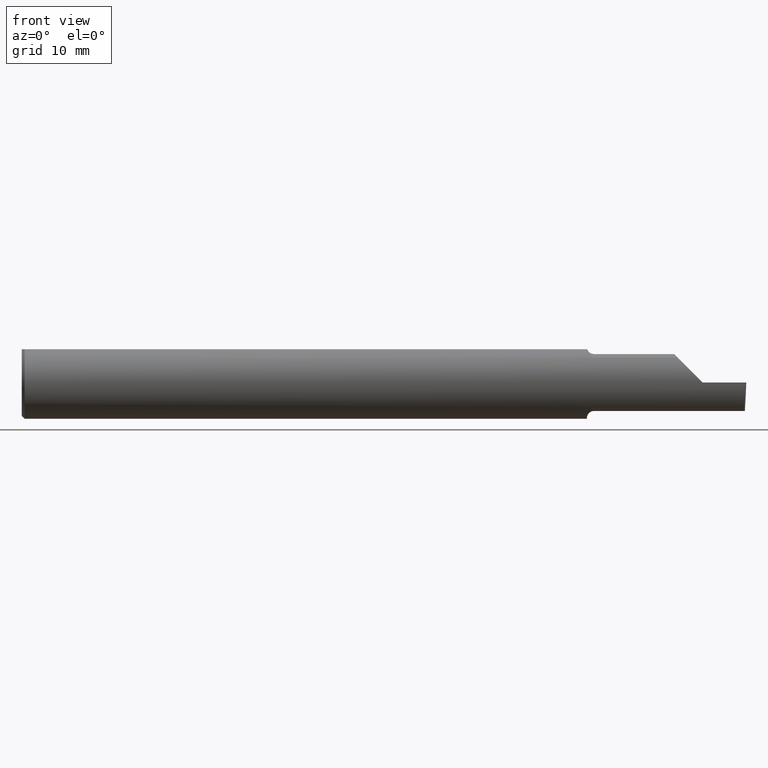
[diagram: clean part render]
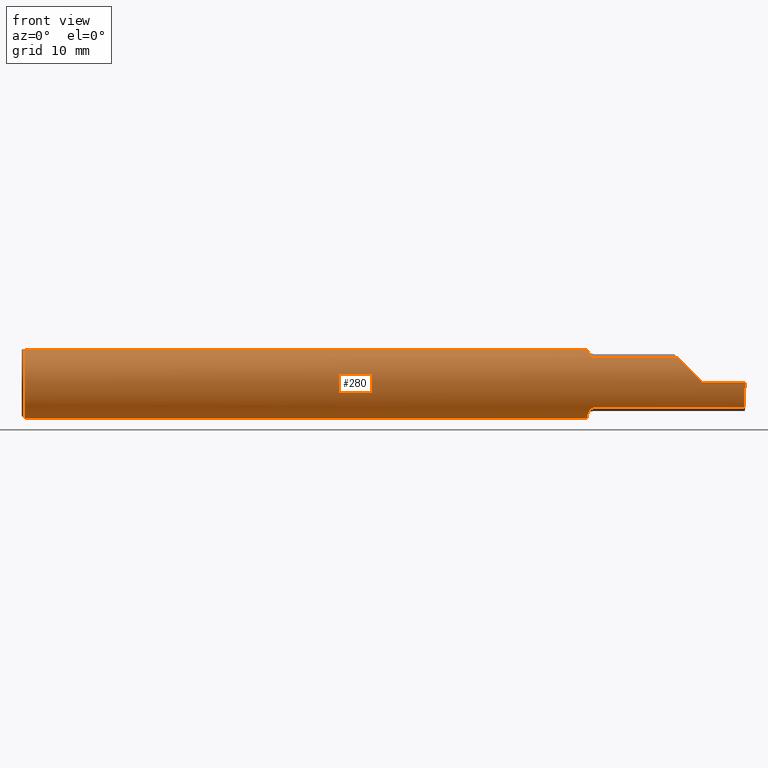
[diagram: same view with one face highlighted and labeled with its STEP entity id]
A machine part, front view. The second image highlights one B-rep face of the part: STEP entity #280.
In plain terms, the highlighted cylindrical surface (edge-blend (fillet) strip) has radius 3.175 mm, axis along (-1, -0, -0).
Its self-contained STEP definition (entity closure, byte-faithful):
#17 = ORIENTED_EDGE ( 'NONE', *, *, #48, .T. ) ;
#23 = B_SPLINE_CURVE_WITH_KNOTS ( 'NONE', 3,
 ( #637, #410, #148, #212, #354, #93, #470, #153, #685, #632, #359, #579 ),
 .UNSPECIFIED., .F., .F.,
 ( 4, 2, 2, 2, 2, 4 ),
 ( 1.964009442425878487E-07, 0.0001304774066965833025, 0.0002607584124489240127, 0.0005213204239535911217, 0.001042444446962923713, 0.002084692492981589981 ),
 .UNSPECIFIED. ) ;
#30 = AXIS2_PLACEMENT_3D ( 'NONE', #382, #58, #372 ) ;
#48 = EDGE_CURVE ( 'NONE', #337, #677, #59, .T. ) ;
#58 = DIRECTION ( 'NONE',  ( 1.000000000000000000, 3.255450358112149836E-17, 0.000000000000000000 ) ) ;
#59 =( BOUNDED_CURVE ( )  B_SPLINE_CURVE ( 3, ( #682, #295, #479, #312 ),
 .UNSPECIFIED., .F., .T. ) 
 B_SPLINE_CURVE_WITH_KNOTS ( ( 4, 4 ),
 ( 4.712388980384689674, 5.474523801125206646 ),
 .UNSPECIFIED. ) 
 CURVE ( )  GEOMETRIC_REPRESENTATION_ITEM ( )  RATIONAL_B_SPLINE_CURVE ( ( 1.000000000000000000, 0.9521787881681383903, 0.9521787881681383903, 1.000000000000000000 ) ) 
 REPRESENTATION_ITEM ( '' )  );
#61 = EDGE_CURVE ( 'NONE', #336, #383, #376, .T. ) ;
#63 = CIRCLE ( 'NONE', #365, 0.1250000000000000000 ) ;
#65 = AXIS2_PLACEMENT_3D ( 'NONE', #672, #498, #72 ) ;
#72 = DIRECTION ( 'NONE',  ( 0.000000000000000000, 0.000000000000000000, 1.000000000000000000 ) ) ;
#78 = EDGE_CURVE ( 'NONE', #415, #416, #23, .T. ) ;
#89 = CARTESIAN_POINT ( 'NONE',  ( 1.974999999999999867, -0.09042045454545430405, 0.08630840862739520836 ) ) ;
#90 = DIRECTION ( 'NONE',  ( 1.000000000000000000, 0.000000000000000000, 0.000000000000000000 ) ) ;
#92 = LINE ( 'NONE', #360, #305 ) ;
#93 = CARTESIAN_POINT ( 'NONE',  ( 1.964104893754834658, -0.08507551663519485885, -0.09161800969921145288 ) ) ;
#109 = CARTESIAN_POINT ( 'NONE',  ( 1.951278290187155484, -0.04898979485567042658, 0.1149999999999999217 ) ) ;
#130 =( BOUNDED_CURVE ( )  B_SPLINE_CURVE ( 3, ( #290, #201, #149, #414 ),
 .UNSPECIFIED., .F., .T. ) 
 B_SPLINE_CURVE_WITH_KNOTS ( ( 4, 4 ),
 ( 0.3451966888489937380, 1.107331509589511098 ),
 .UNSPECIFIED. ) 
 CURVE ( )  GEOMETRIC_REPRESENTATION_ITEM ( )  RATIONAL_B_SPLINE_CURVE ( ( 1.000000000000000000, 0.9521787881681382792, 0.9521787881681382792, 1.000000000000000000 ) ) 
 REPRESENTATION_ITEM ( '' )  );
#140 = CARTESIAN_POINT ( 'NONE',  ( 0.01000000000000042348, 0.000000000000000000, -0.1250000000000000000 ) ) ;
#143 = CARTESIAN_POINT ( 'NONE',  ( 2.224737910000000429, -0.09042045454545435956, 0.08630840862739518060 ) ) ;
#147 = CARTESIAN_POINT ( 'NONE',  ( 1.960996102358257609, -0.08116363444210958344, 0.09515685373890778176 ) ) ;
#148 = CARTESIAN_POINT ( 'NONE',  ( 1.971593478233292007, -0.08999923832592927886, -0.08675238105120941512 ) ) ;
#149 = CARTESIAN_POINT ( 'NONE',  ( 2.494776490973177552, -0.1250000000000000278, -0.03254916765648421806 ) ) ;
#152 = CARTESIAN_POINT ( 'NONE',  ( 1.949999999999999956, -0.02763636363636367069, -0.1219066503721543265 ) ) ;
#153 = CARTESIAN_POINT ( 'NONE',  ( 1.957957287629478849, -0.07583111505166782729, -0.09955951024620247891 ) ) ;
#163 = EDGE_CURVE ( 'NONE', #416, #697, #281, .T. ) ;
#194 = EDGE_CURVE ( 'NONE', #697, #383, #656, .T. ) ;
#196 = DIRECTION ( 'NONE',  ( 1.000000000000000000, 0.000000000000000000, 0.000000000000000000 ) ) ;
#198 = ORIENTED_EDGE ( 'NONE', *, *, #377, .F. ) ;
#201 = CARTESIAN_POINT ( 'NONE',  ( 2.493932522392287687, -0.1128945894460738480, -0.06276352435079118885 ) ) ;
#202 = CARTESIAN_POINT ( 'NONE',  ( 1.970169762358927823, -0.08954173371313516039, 0.08723520050113862945 ) ) ;
#206 = DIRECTION ( 'NONE',  ( 0.000000000000000000, 0.000000000000000000, -1.000000000000000000 ) ) ;
#212 = CARTESIAN_POINT ( 'NONE',  ( 1.968701570004388168, -0.08871861273376825674, -0.08806160498138397574 ) ) ;
#213 = VECTOR ( 'NONE', #400, 39.37007874015748143 ) ;
#219 = ORIENTED_EDGE ( 'NONE', *, *, #397, .F. ) ;
#222 = DIRECTION ( 'NONE',  ( -1.000000000000000000, -0.000000000000000000, -0.000000000000000000 ) ) ;
#234 = ORIENTED_EDGE ( 'NONE', *, *, #466, .T. ) ;
#242 = CARTESIAN_POINT ( 'NONE',  ( 0.01000000000000042348, 0.000000000000000000, 0.000000000000000000 ) ) ;
#247 = DIRECTION ( 'NONE',  ( 0.000000000000000000, 0.000000000000000000, -1.000000000000000000 ) ) ;
#250 = ORIENTED_EDGE ( 'NONE', *, *, #389, .F. ) ;
#251 = CARTESIAN_POINT ( 'NONE',  ( 0.01000000000000042348, 0.04898979485566374442, 0.1149999999999999217 ) ) ;
#267 = LINE ( 'NONE', #412, #626 ) ;
#277 = B_SPLINE_CURVE_WITH_KNOTS ( 'NONE', 3,
 ( #623, #405, #465, #628, #147, #297, #636, #202, #469, #89 ),
 .UNSPECIFIED., .F., .F.,
 ( 4, 2, 2, 2, 4 ),
 ( 5.067393987348957741E-07, 0.0007430328995925439273, 0.001114295979689448228, 0.001299927519737895283, 0.001485559059786342338 ),
 .UNSPECIFIED. ) ;
#280 = ADVANCED_FACE ( 'NONE', ( #670 ), #339, .T. ) ;
#281 = CIRCLE ( 'NONE', #30, 0.1250000000000000000 ) ;
#285 = ORIENTED_EDGE ( 'NONE', *, *, #61, .T. ) ;
#290 = CARTESIAN_POINT ( 'NONE',  ( 2.493502479154699358, -0.09042045454545434569, -0.08630840862739518060 ) ) ;
#295 = CARTESIAN_POINT ( 'NONE',  ( 2.317450832343515899, -0.1250000000000000000, 0.03254916765648416949 ) ) ;
#297 = CARTESIAN_POINT ( 'NONE',  ( 1.964945076695559179, -0.08578123596784992255, 0.09094459933477699876 ) ) ;
#299 = CARTESIAN_POINT ( 'NONE',  ( 2.493502479154699358, -0.09042045454545434569, -0.08630840862739518060 ) ) ;
#303 = EDGE_CURVE ( 'NONE', #551, #415, #504, .T. ) ;
#305 = VECTOR ( 'NONE', #468, 39.37007874015748143 ) ;
#312 = CARTESIAN_POINT ( 'NONE',  ( 2.263691591372603895, -0.09042045454545441507, 0.08630840862739512509 ) ) ;
#315 = CARTESIAN_POINT ( 'NONE',  ( 0.000000000000000000, 0.04898979485566374442, 0.1149999999999999217 ) ) ;
#336 = VERTEX_POINT ( 'NONE', #140 ) ;
#337 = VERTEX_POINT ( 'NONE', #344 ) ;
#339 = CYLINDRICAL_SURFACE ( 'NONE', #65, 0.1250000000000000000 ) ;
#340 = ORIENTED_EDGE ( 'NONE', *, *, #194, .F. ) ;
#344 = CARTESIAN_POINT ( 'NONE',  ( 2.350000000000000089, -0.1250000000000000278, 1.836970198721028825E-17 ) ) ;
#346 = CARTESIAN_POINT ( 'NONE',  ( 1.974999999999999867, -0.09042045454545430405, 0.08630840862739520836 ) ) ;
#353 = CARTESIAN_POINT ( 'NONE',  ( 0.01000000000000042348, -0.04898979485566374442, 0.1149999999999999217 ) ) ;
#354 = CARTESIAN_POINT ( 'NONE',  ( 1.967439721641151218, -0.08786602687380749843, -0.08891702384475583254 ) ) ;
#359 = CARTESIAN_POINT ( 'NONE',  ( 1.949999999999999956, -0.04088126997068486368, -0.1189040164168497365 ) ) ;
#360 = CARTESIAN_POINT ( 'NONE',  ( 3.749399456654637998E-32, -0.1249999999999999861, 3.061616997868380183E-16 ) ) ;
#365 = AXIS2_PLACEMENT_3D ( 'NONE', #242, #196, #206 ) ;
#371 = ORIENTED_EDGE ( 'NONE', *, *, #303, .F. ) ;
#372 = DIRECTION ( 'NONE',  ( 0.000000000000000000, 1.000000000000000000, 0.000000000000000000 ) ) ;
#373 = CARTESIAN_POINT ( 'NONE',  ( 1.949999999999999956, 0.04898979485566374442, 0.1149999999999999217 ) ) ;
#376 = CIRCLE ( 'NONE', #664, 0.1250000000000000000 ) ;
#377 = EDGE_CURVE ( 'NONE', #624, #677, #684, .T. ) ;
#379 = CARTESIAN_POINT ( 'NONE',  ( 1.974999999999999867, -0.09042045454545437344, -0.08630840862739515285 ) ) ;
#381 = CARTESIAN_POINT ( 'NONE',  ( 2.263691591372603895, -0.09042045454545441507, 0.08630840862739512509 ) ) ;
#382 = CARTESIAN_POINT ( 'NONE',  ( 1.949999999999999956, 0.000000000000000000, 0.000000000000000000 ) ) ;
#383 = VERTEX_POINT ( 'NONE', #251 ) ;
#385 = ORIENTED_EDGE ( 'NONE', *, *, #163, .F. ) ;
#389 = EDGE_CURVE ( 'NONE', #421, #647, #267, .T. ) ;
#397 = EDGE_CURVE ( 'NONE', #647, #624, #277, .T. ) ;
#400 = DIRECTION ( 'NONE',  ( -1.000000000000000000, -3.255450358112149836E-17, -0.000000000000000000 ) ) ;
#405 = CARTESIAN_POINT ( 'NONE',  ( 1.952426556614195841, -0.05801934803234086446, 0.1111534264542279882 ) ) ;
#410 = CARTESIAN_POINT ( 'NONE',  ( 1.973259114367879263, -0.09042045454545435956, -0.08630840862739518060 ) ) ;
#412 = CARTESIAN_POINT ( 'NONE',  ( 0.000000000000000000, -0.04898979485566374442, 0.1149999999999999217 ) ) ;
#414 = CARTESIAN_POINT ( 'NONE',  ( 2.495913306096507522, -0.1250000000000000000, 0.000000000000000000 ) ) ;
#415 = VERTEX_POINT ( 'NONE', #379 ) ;
#416 = VERTEX_POINT ( 'NONE', #152 ) ;
#421 = VERTEX_POINT ( 'NONE', #353 ) ;
#465 = CARTESIAN_POINT ( 'NONE',  ( 1.954267307214533567, -0.06631395538259697575, 0.1063681193386739193 ) ) ;
#466 = EDGE_CURVE ( 'NONE', #671, #337, #92, .T. ) ;
#468 = DIRECTION ( 'NONE',  ( -1.000000000000000000, -0.000000000000000000, -0.000000000000000000 ) ) ;
#469 = CARTESIAN_POINT ( 'NONE',  ( 1.972488493957837097, -0.09042045454585199982, 0.08630840862697869431 ) ) ;
#470 = CARTESIAN_POINT ( 'NONE',  ( 1.962379706860118089, -0.08285324498731289067, -0.09364669410973919250 ) ) ;
#474 = DIRECTION ( 'NONE',  ( 1.000000000000000000, 0.000000000000000000, 0.000000000000000000 ) ) ;
#479 = CARTESIAN_POINT ( 'NONE',  ( 2.287236475649208067, -0.1128945894460738203, 0.06276352435079109171 ) ) ;
#498 = DIRECTION ( 'NONE',  ( -1.000000000000000000, -0.000000000000000000, -0.000000000000000000 ) ) ;
#504 = LINE ( 'NONE', #606, #213 ) ;
#530 = ORIENTED_EDGE ( 'NONE', *, *, #588, .T. ) ;
#535 = EDGE_LOOP ( 'NONE', ( #371, #701, #234, #17, #198, #219, #250, #530, #285, #340, #385, #603 ) ) ;
#539 = CARTESIAN_POINT ( 'NONE',  ( 2.495913306096507522, -0.1250000000000000000, 0.000000000000000000 ) ) ;
#551 = VERTEX_POINT ( 'NONE', #299 ) ;
#561 = EDGE_CURVE ( 'NONE', #551, #671, #130, .T. ) ;
#572 = CARTESIAN_POINT ( 'NONE',  ( 0.01000000000000042348, 0.000000000000000000, 0.000000000000000000 ) ) ;
#579 = CARTESIAN_POINT ( 'NONE',  ( 1.949999999999999956, -0.02763636363636367069, -0.1219066503721543265 ) ) ;
#583 = VECTOR ( 'NONE', #222, 39.37007874015748143 ) ;
#588 = EDGE_CURVE ( 'NONE', #421, #336, #63, .T. ) ;
#603 = ORIENTED_EDGE ( 'NONE', *, *, #78, .F. ) ;
#606 = CARTESIAN_POINT ( 'NONE',  ( 2.224737910000000429, -0.09042045454545435956, -0.08630840862739518060 ) ) ;
#623 = CARTESIAN_POINT ( 'NONE',  ( 1.951278290187155484, -0.04898979485567042658, 0.1149999999999999217 ) ) ;
#624 = VERTEX_POINT ( 'NONE', #346 ) ;
#626 = VECTOR ( 'NONE', #474, 39.37007874015748143 ) ;
#628 = CARTESIAN_POINT ( 'NONE',  ( 1.959055883886254401, -0.07758562614456444850, 0.09811804109484038861 ) ) ;
#632 = CARTESIAN_POINT ( 'NONE',  ( 1.951267035147732587, -0.05364148398375696847, -0.1136671534952896079 ) ) ;
#636 = CARTESIAN_POINT ( 'NONE',  ( 1.966446811421614260, -0.08721672169480999826, 0.08955973280240357715 ) ) ;
#637 = CARTESIAN_POINT ( 'NONE',  ( 1.974999999999999867, -0.09042045454545437344, -0.08630840862739515285 ) ) ;
#647 = VERTEX_POINT ( 'NONE', #109 ) ;
#650 = DIRECTION ( 'NONE',  ( 1.000000000000000000, 3.255450358112149836E-17, 0.000000000000000000 ) ) ;
#656 = LINE ( 'NONE', #315, #583 ) ;
#664 = AXIS2_PLACEMENT_3D ( 'NONE', #572, #90, #247 ) ;
#670 = FACE_OUTER_BOUND ( 'NONE', #535, .T. ) ;
#671 = VERTEX_POINT ( 'NONE', #539 ) ;
#672 = CARTESIAN_POINT ( 'NONE',  ( 0.000000000000000000, 0.000000000000000000, 0.000000000000000000 ) ) ;
#677 = VERTEX_POINT ( 'NONE', #381 ) ;
#682 = CARTESIAN_POINT ( 'NONE',  ( 2.350000000000000089, -0.1250000000000000278, 1.836970198721028825E-17 ) ) ;
#684 = LINE ( 'NONE', #143, #698 ) ;
#685 = CARTESIAN_POINT ( 'NONE',  ( 1.955932841370988662, -0.07048791403321993942, -0.1034389270157552304 ) ) ;
#697 = VERTEX_POINT ( 'NONE', #373 ) ;
#698 = VECTOR ( 'NONE', #650, 39.37007874015748143 ) ;
#701 = ORIENTED_EDGE ( 'NONE', *, *, #561, .T. ) ;